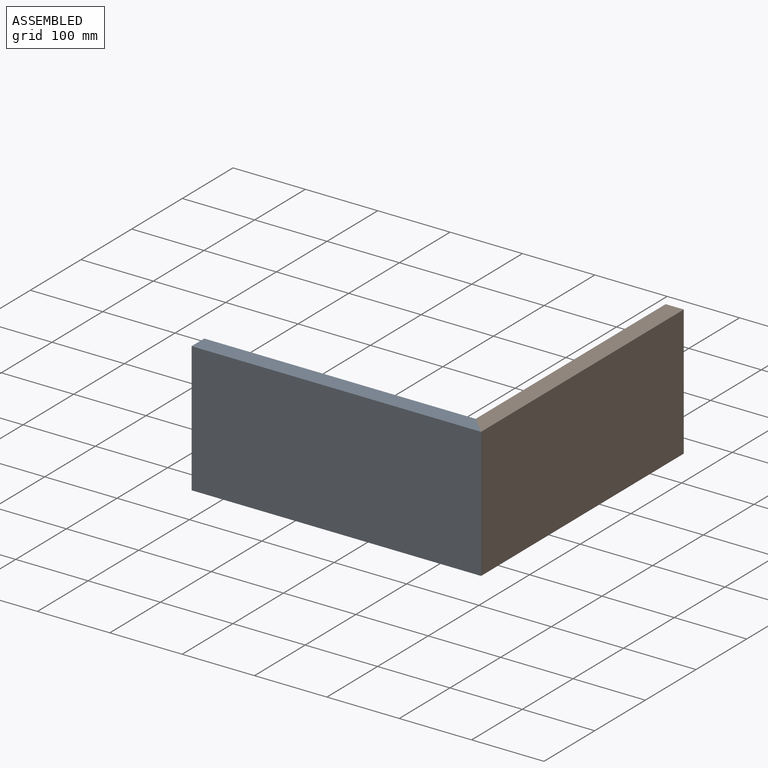
[diagram: assembled view]
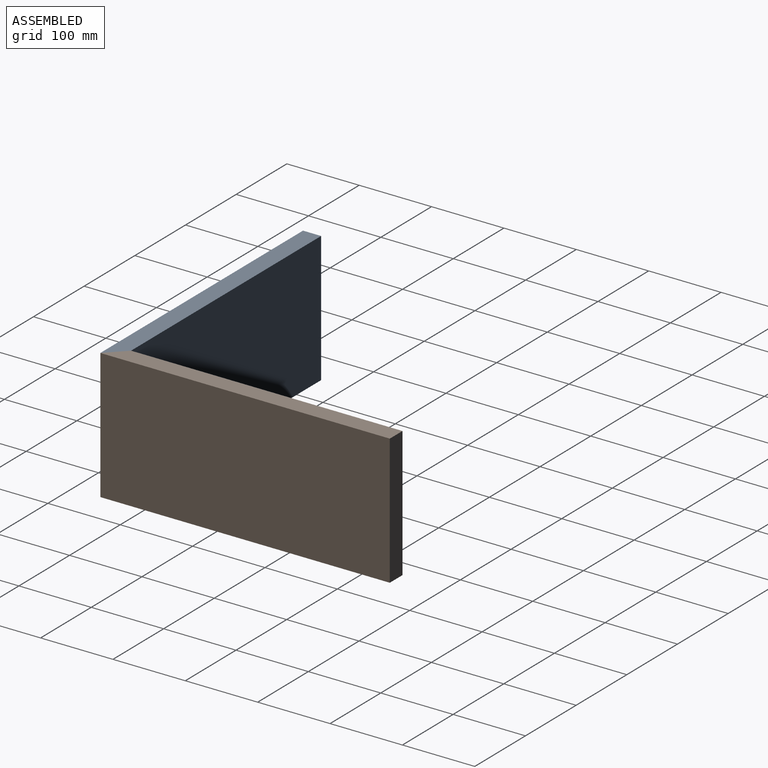
[diagram: assembled view, second angle]
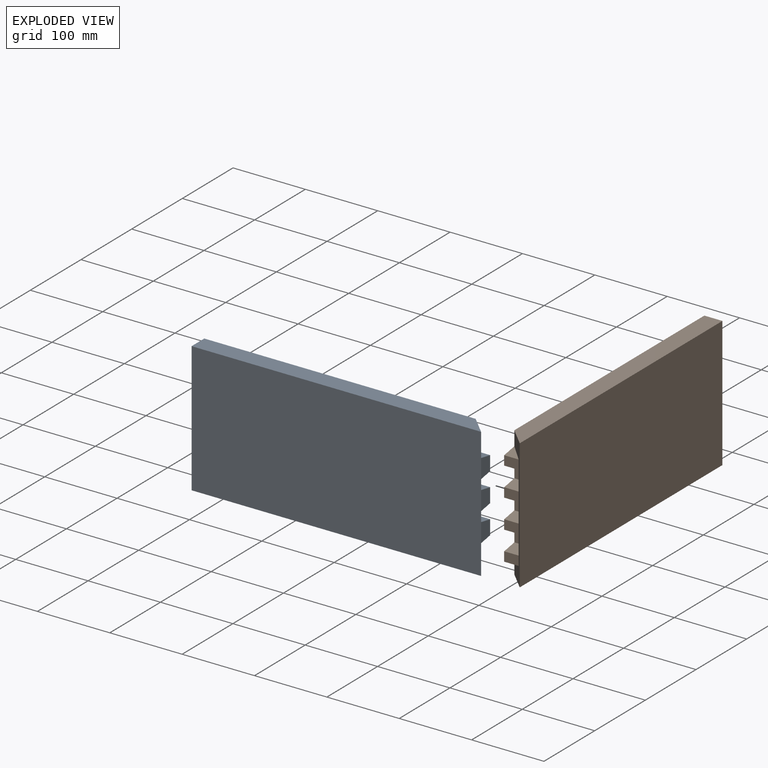
[diagram: exploded view]
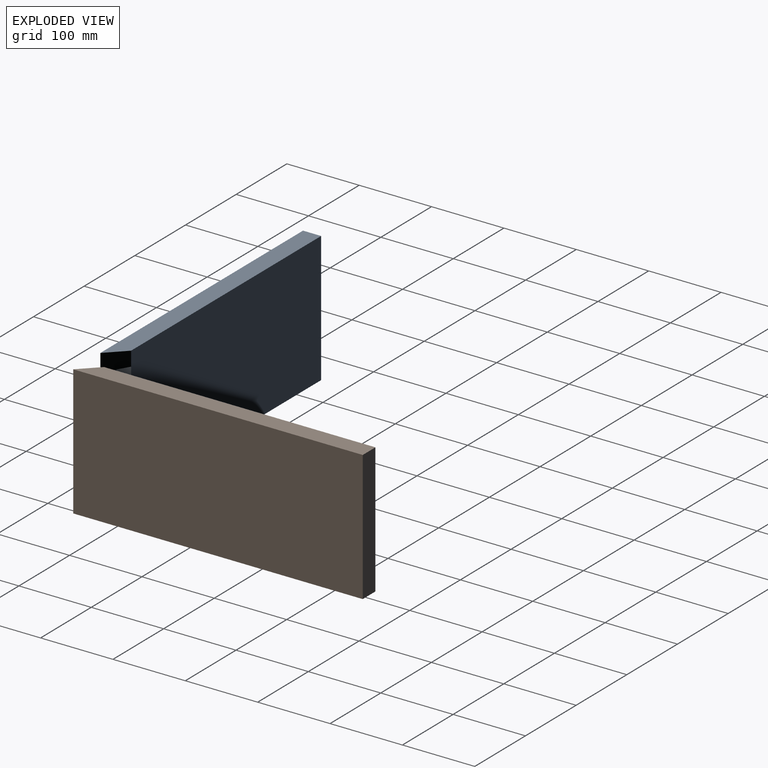
[diagram: exploded view, second angle]
ASSEMBLY  parts=2 mates=3
PART A: 27 faces, bbox 400x25x180 mm
  f0: plane 20x12.95mm, normal (0,1,0), area 258.9mm2, adj f11,f18,f19,f20
  f1: plane 20x12.95mm, normal (0,1,0), area 258.9mm2, adj f11,f21,f22,f23
  f2: plane 20x12.95mm, normal (0,1,0), area 258.9mm2, adj f11,f24,f25,f26
  f3: plane 23.53x20mm, normal (0.71,0.71,0), area 615.6mm2, adj f8,f11,f14,f25
  f4: plane 27.05x20mm, normal (1,0,0), area 470.5mm2, adj f8,f11,f22,f24
  f5: plane 27.05x20mm, normal (1,0,0), area 470.5mm2, adj f8,f11,f19,f21
  f6: plane 27.05x20mm, normal (1,0,0), area 470.5mm2, adj f8,f11,f16,f18
  f7: plane 23.53x20mm, normal (0.71,0.71,0), area 615.6mm2, adj f8,f11,f13,f15
  f8: plane 395x180mm, normal (0,1,0), area 68700mm2, adj f3,f4,f5,f6,f7,f9,f13,f14
  f9: plane 180x25mm, normal (-1,0,0), area 4500mm2, adj f8,f10,f13,f14
  f10: plane 400x180mm, normal (0,-1,0), area 72000mm2, adj f9,f11,f13,f14
  f11: plane 180x5mm, normal (0.71,0.71,0), area 1272.8mm2, adj f0,f1,f2,f3,f4,f5,f6,f7
  f12: plane 20x12.95mm, normal (0,1,0), area 258.9mm2, adj f11,f15,f16,f17
  f13: plane 400x25mm, normal (0,0,1), area 9687.5mm2, adj f7,f8,f9,f10,f11
  f14: plane 400x25mm, normal (0,0,-1), area 9687.5mm2, adj f3,f8,f9,f10,f11
  f15: plane 20x20mm, normal (0,0.17,-0.98), area 203.1mm2, adj f7,f12,f17
  f16: plane 20x20mm, normal (0,0.17,0.98), area 406.2mm2, adj f6,f8,f12,f17
  f17: plane 20x20mm, normal (1,0,0), area 329.5mm2, adj f8,f12,f15,f16
  f18: plane 20x20mm, normal (0,0.17,-0.98), area 406.2mm2, adj f0,f6,f8,f20
  f19: plane 20x20mm, normal (0,0.17,0.98), area 406.2mm2, adj f0,f5,f8,f20
  f20: plane 20x20mm, normal (1,0,0), area 329.5mm2, adj f0,f8,f18,f19
  f21: plane 20x20mm, normal (0,0.17,-0.98), area 406.2mm2, adj f1,f5,f8,f23
  f22: plane 20x20mm, normal (0,0.17,0.98), area 406.2mm2, adj f1,f4,f8,f23
  f23: plane 20x20mm, normal (1,0,0), area 329.5mm2, adj f1,f8,f21,f22
  f24: plane 20x20mm, normal (0,0.17,-0.98), area 406.2mm2, adj f2,f4,f8,f26
  f25: plane 20x20mm, normal (0,0.17,0.98), area 203.1mm2, adj f2,f3,f26
  f26: plane 20x20mm, normal (1,0,0), area 329.5mm2, adj f2,f8,f24,f25
PART B: 26 faces, bbox 25x400x180 mm
  f0: plane 400x25mm, normal (0,0,-1), area 9687.5mm2, adj f2,f3,f4,f11,f16
  f1: plane 400x25mm, normal (0,0,1), area 9687.5mm2, adj f2,f3,f4,f15,f16
  f2: plane 180x25mm, normal (0,1,0), area 4500mm2, adj f0,f1,f3,f4
  f3: plane 400x180mm, normal (1,0,0), area 72000mm2, adj f0,f1,f2,f16
  f4: plane 395x180mm, normal (-1,0,0), area 68817.9mm2, adj f0,f1,f2,f5,f6,f7,f8,f9
  f5: plane 20x20mm, normal (0,-1,0), area 400mm2, adj f4,f14,f19,f20
  f6: plane 20x20mm, normal (0,-1,0), area 400mm2, adj f4,f13,f21,f22
  f7: plane 20x20mm, normal (0,-1,0), area 400mm2, adj f4,f12,f23,f24
  f8: plane 20x12.95mm, normal (0,-1,0), area 258.9mm2, adj f4,f16,f20,f21
  f9: plane 20x12.95mm, normal (0,-1,0), area 258.9mm2, adj f4,f16,f22,f23
  f10: plane 20x12.95mm, normal (0,-1,0), area 258.9mm2, adj f4,f16,f24,f25
  f11: plane 23.53x20mm, normal (-0.71,-0.71,0), area 615.6mm2, adj f0,f4,f16,f25
  f12: plane 27.05x20mm, normal (-1,0,0), area 470.5mm2, adj f7,f16,f23,f24
  f13: plane 27.05x20mm, normal (-1,0,0), area 470.5mm2, adj f6,f16,f21,f22
  f14: plane 27.05x20mm, normal (-1,0,0), area 470.5mm2, adj f5,f16,f19,f20
  f15: plane 23.53x20mm, normal (-0.71,-0.71,0), area 615.6mm2, adj f1,f4,f16,f18
  f16: plane 180x5mm, normal (-0.71,-0.71,0), area 1272.8mm2, adj f0,f1,f3,f8,f9,f10,f11,f12
  f17: plane 20x12.95mm, normal (0,-1,0), area 258.9mm2, adj f4,f16,f18,f19
  f18: plane 20x20mm, normal (0,-0.17,0.98), area 203.1mm2, adj f4,f15,f17
  f19: plane 20x20mm, normal (0,-0.17,-0.98), area 406.2mm2, adj f4,f5,f14,f17
  f20: plane 20x20mm, normal (0,-0.17,0.98), area 406.2mm2, adj f4,f5,f8,f14
  f21: plane 20x20mm, normal (0,-0.17,-0.98), area 406.2mm2, adj f4,f6,f8,f13
  f22: plane 20x20mm, normal (0,-0.17,0.98), area 406.2mm2, adj f4,f6,f9,f13
  f23: plane 20x20mm, normal (0,-0.17,-0.98), area 406.2mm2, adj f4,f7,f9,f12
  f24: plane 20x20mm, normal (0,-0.17,0.98), area 406.2mm2, adj f4,f7,f10,f12
  f25: plane 20x20mm, normal (0,-0.17,-0.98), area 203.1mm2, adj f4,f10,f11
PLACE A t=(-32.05,-49.89,54.87)mm fixed
PLACE B t=(-32.05,-49.89,54.87)mm
MATE planar B.f14 <-> A.f6  axis (-1,0,0) through (-37.05,-35.39,184.87)mm
MATE planar B.f10 <-> A.f2  axis (0,-1,0) through (-47.05,-44.89,84.87)mm
MATE planar A.f14 <-> B.f0  axis (0,0,-1) through (-238.23,-37.53,54.87)mm
